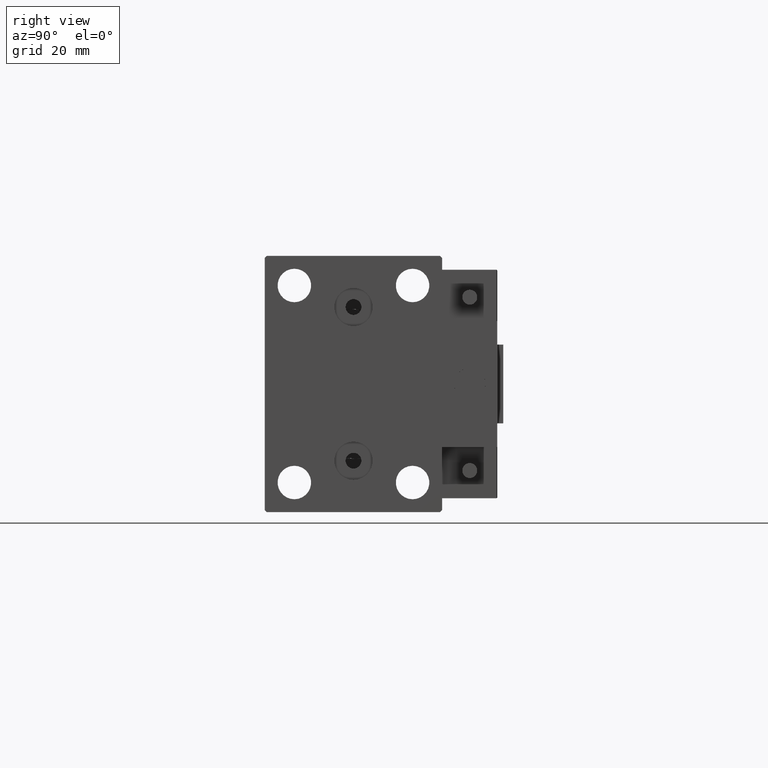
[diagram: clean part render]
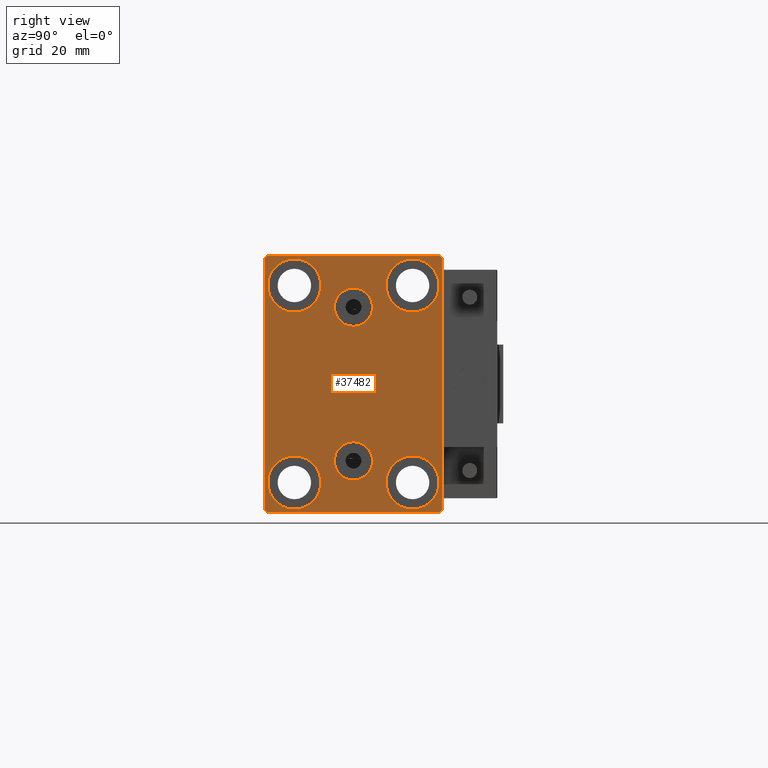
[diagram: same view with one face highlighted and labeled with its STEP entity id]
A machine part, right view. The second image highlights one B-rep face of the part: STEP entity #37482.
In plain terms, the highlighted planar face has unit normal (1, 0, 0).
Its self-contained STEP definition (entity closure, byte-faithful):
#85 = DIRECTION ( 'NONE',  ( -1.000000000000000000, -0.000000000000000000, -0.000000000000000000 ) ) ;
#421 = FACE_BOUND ( 'NONE', #34217, .T. ) ;
#723 = EDGE_CURVE ( 'NONE', #37584, #48926, #15099, .T. ) ;
#1531 = CARTESIAN_POINT ( 'NONE',  ( 70.00000000000000000, -3.571693674697836683E-15, 19.50000000000000355 ) ) ;
#2071 = VERTEX_POINT ( 'NONE', #15064 ) ;
#2074 = VERTEX_POINT ( 'NONE', #22427 ) ;
#2349 = ORIENTED_EDGE ( 'NONE', *, *, #18593, .T. ) ;
#2729 = LINE ( 'NONE', #47507, #14091 ) ;
#2769 = LINE ( 'NONE', #43117, #6940 ) ;
#3944 = AXIS2_PLACEMENT_3D ( 'NONE', #17179, #25037, #32399 ) ;
#4075 = CARTESIAN_POINT ( 'NONE',  ( 70.00000000000000000, 22.49999999999999289, 32.50000000000000000 ) ) ;
#4700 = EDGE_LOOP ( 'NONE', ( #47580, #24415, #48046, #43548, #11087, #23795, #24167, #33088 ) ) ;
#5157 = CARTESIAN_POINT ( 'NONE',  ( 70.00000000000000000, 15.00000000000000355, 31.75000000000000000 ) ) ;
#5225 = EDGE_LOOP ( 'NONE', ( #2349, #20823 ) ) ;
#5406 = CARTESIAN_POINT ( 'NONE',  ( 70.00000000000000000, 14.99999999999999645, -31.75000000000000000 ) ) ;
#5986 = DIRECTION ( 'NONE',  ( 0.000000000000000000, 1.000000000000000000, 0.000000000000000000 ) ) ;
#6089 = DIRECTION ( 'NONE',  ( 1.000000000000000000, 0.000000000000000000, -0.000000000000000000 ) ) ;
#6122 = ORIENTED_EDGE ( 'NONE', *, *, #723, .F. ) ;
#6157 = CARTESIAN_POINT ( 'NONE',  ( 70.00000000000000000, -2.976515330312223406E-15, 24.36000000000000298 ) ) ;
#6421 = EDGE_LOOP ( 'NONE', ( #30762, #47994 ) ) ;
#6527 = CIRCLE ( 'NONE', #7367, 6.749999999999999112 ) ;
#6940 = VECTOR ( 'NONE', #15073, 1000.000000000000114 ) ;
#7017 = DIRECTION ( 'NONE',  ( 0.000000000000000000, 0.000000000000000000, -1.000000000000000000 ) ) ;
#7288 = VERTEX_POINT ( 'NONE', #48663 ) ;
#7335 = VECTOR ( 'NONE', #12444, 1000.000000000000000 ) ;
#7367 = AXIS2_PLACEMENT_3D ( 'NONE', #43550, #38862, #44068 ) ;
#7636 = ORIENTED_EDGE ( 'NONE', *, *, #30665, .F. ) ;
#7929 = EDGE_CURVE ( 'NONE', #40710, #38103, #39519, .T. ) ;
#7941 = AXIS2_PLACEMENT_3D ( 'NONE', #24775, #15609, #28206 ) ;
#8047 = DIRECTION ( 'NONE',  ( -1.000000000000000000, -0.000000000000000000, -0.000000000000000000 ) ) ;
#8356 = VERTEX_POINT ( 'NONE', #24929 ) ;
#8604 = EDGE_LOOP ( 'NONE', ( #23340, #36219 ) ) ;
#8835 = AXIS2_PLACEMENT_3D ( 'NONE', #46672, #50080, #39067 ) ;
#9381 = DIRECTION ( 'NONE',  ( 1.000000000000000000, 0.000000000000000000, 0.000000000000000000 ) ) ;
#9646 = EDGE_CURVE ( 'NONE', #42174, #2071, #50000, .T. ) ;
#9958 = CARTESIAN_POINT ( 'NONE',  ( 70.00000000000000000, 27.25000000000014921, 27.24999999999976907 ) ) ;
#9973 = EDGE_CURVE ( 'NONE', #50087, #42174, #2769, .T. ) ;
#10275 = DIRECTION ( 'NONE',  ( 0.000000000000000000, 0.000000000000000000, 1.000000000000000000 ) ) ;
#10461 = CIRCLE ( 'NONE', #47259, 6.749999999999999112 ) ;
#10491 = CARTESIAN_POINT ( 'NONE',  ( 70.00000000000000000, 2.983239602722951428E-15, -14.63999999999999702 ) ) ;
#10705 = EDGE_LOOP ( 'NONE', ( #17413, #45695 ) ) ;
#10790 = VECTOR ( 'NONE', #5986, 1000.000000000000000 ) ;
#11013 = VERTEX_POINT ( 'NONE', #27922 ) ;
#11087 = ORIENTED_EDGE ( 'NONE', *, *, #45518, .T. ) ;
#12143 = DIRECTION ( 'NONE',  ( -1.000000000000000000, -0.000000000000000000, -0.000000000000000000 ) ) ;
#12444 = DIRECTION ( 'NONE',  ( 0.000000000000000000, -1.000000000000000000, -1.541976423090495387E-16 ) ) ;
#12460 = FACE_BOUND ( 'NONE', #5225, .T. ) ;
#13035 = CARTESIAN_POINT ( 'NONE',  ( 70.00000000000000000, 15.00000000000000355, 25.00000000000000000 ) ) ;
#13398 = EDGE_CURVE ( 'NONE', #35146, #8356, #33909, .T. ) ;
#13841 = DIRECTION ( 'NONE',  ( 0.000000000000000000, 0.000000000000000000, -1.000000000000000000 ) ) ;
#13885 = DIRECTION ( 'NONE',  ( -0.000000000000000000, 0.7071067811865378028, -0.7071067811865573427 ) ) ;
#14091 = VECTOR ( 'NONE', #15285, 1000.000000000000000 ) ;
#14117 = CARTESIAN_POINT ( 'NONE',  ( 70.00000000000000000, -22.50000000000000711, 32.49999999999999289 ) ) ;
#14377 = DIRECTION ( 'NONE',  ( 0.000000000000000000, 0.000000000000000000, -1.000000000000000000 ) ) ;
#14709 = CARTESIAN_POINT ( 'NONE',  ( 70.00000000000000000, -15.00000000000000355, -18.25000000000000355 ) ) ;
#15064 = CARTESIAN_POINT ( 'NONE',  ( 70.00000000000000000, -22.50000000000000711, -32.00000000000000711 ) ) ;
#15073 = DIRECTION ( 'NONE',  ( 0.000000000000000000, -0.7071067811865474617, -0.7071067811865474617 ) ) ;
#15099 = CIRCLE ( 'NONE', #44391, 4.859999999999999432 ) ;
#15285 = DIRECTION ( 'NONE',  ( 0.000000000000000000, -1.067522139062650425E-16, 1.000000000000000000 ) ) ;
#15603 = VECTOR ( 'NONE', #33048, 999.9999999999998863 ) ;
#15609 = DIRECTION ( 'NONE',  ( -1.000000000000000000, -0.000000000000000000, -0.000000000000000000 ) ) ;
#15704 = DIRECTION ( 'NONE',  ( 1.000000000000000000, 0.000000000000000000, -0.000000000000000000 ) ) ;
#15872 = VERTEX_POINT ( 'NONE', #45535 ) ;
#16133 = PLANE ( 'NONE',  #3944 ) ;
#17064 = CARTESIAN_POINT ( 'NONE',  ( 70.00000000000000000, -22.50000000000000711, -32.50000000000000711 ) ) ;
#17110 = EDGE_CURVE ( 'NONE', #43735, #27978, #10461, .T. ) ;
#17179 = CARTESIAN_POINT ( 'NONE',  ( 70.00000000000000000, 0.000000000000000000, 0.000000000000000000 ) ) ;
#17300 = LINE ( 'NONE', #9958, #15603 ) ;
#17413 = ORIENTED_EDGE ( 'NONE', *, *, #33986, .T. ) ;
#17875 = CARTESIAN_POINT ( 'NONE',  ( 70.00000000000000000, -3.571693674697836683E-15, 14.64000000000000412 ) ) ;
#18056 = AXIS2_PLACEMENT_3D ( 'NONE', #27909, #51728, #28176 ) ;
#18593 = EDGE_CURVE ( 'NONE', #8356, #35146, #21411, .T. ) ;
#19866 = EDGE_CURVE ( 'NONE', #2071, #7288, #39021, .T. ) ;
#20327 = FACE_BOUND ( 'NONE', #10705, .T. ) ;
#20371 = DIRECTION ( 'NONE',  ( 0.000000000000000000, 0.000000000000000000, 1.000000000000000000 ) ) ;
#20432 = EDGE_CURVE ( 'NONE', #25034, #22188, #17300, .T. ) ;
#20823 = ORIENTED_EDGE ( 'NONE', *, *, #13398, .T. ) ;
#20986 = LINE ( 'NONE', #17064, #10790 ) ;
#21263 = CIRCLE ( 'NONE', #47222, 4.859999999999999432 ) ;
#21411 = CIRCLE ( 'NONE', #8835, 6.749999999999999112 ) ;
#21545 = CARTESIAN_POINT ( 'NONE',  ( 70.00000000000000000, 2.388061258337338150E-15, -19.49999999999999645 ) ) ;
#22157 = CARTESIAN_POINT ( 'NONE',  ( 70.00000000000000000, 27.25000000000032685, -27.24999999999957012 ) ) ;
#22188 = VERTEX_POINT ( 'NONE', #24666 ) ;
#22427 = CARTESIAN_POINT ( 'NONE',  ( 70.00000000000000000, 2.388061258337338150E-15, -24.35999999999999588 ) ) ;
#22911 = CARTESIAN_POINT ( 'NONE',  ( 70.00000000000000000, -21.99999999999999289, 32.49999999999999289 ) ) ;
#23340 = ORIENTED_EDGE ( 'NONE', *, *, #43325, .T. ) ;
#23795 = ORIENTED_EDGE ( 'NONE', *, *, #28895, .T. ) ;
#24167 = ORIENTED_EDGE ( 'NONE', *, *, #40729, .T. ) ;
#24415 = ORIENTED_EDGE ( 'NONE', *, *, #9973, .T. ) ;
#24666 = CARTESIAN_POINT ( 'NONE',  ( 70.00000000000000000, 21.99999999999999289, 32.50000000000000000 ) ) ;
#24775 = CARTESIAN_POINT ( 'NONE',  ( 70.00000000000000000, -15.00000000000000355, -25.00000000000000000 ) ) ;
#24929 = CARTESIAN_POINT ( 'NONE',  ( 70.00000000000000000, -15.00000000000000355, -31.75000000000000000 ) ) ;
#25034 = VERTEX_POINT ( 'NONE', #44793 ) ;
#25037 = DIRECTION ( 'NONE',  ( 1.000000000000000000, 0.000000000000000000, 0.000000000000000000 ) ) ;
#25645 = VECTOR ( 'NONE', #13885, 1000.000000000000000 ) ;
#26104 = LINE ( 'NONE', #22157, #41286 ) ;
#26299 = AXIS2_PLACEMENT_3D ( 'NONE', #21545, #6089, #10275 ) ;
#26622 = AXIS2_PLACEMENT_3D ( 'NONE', #43484, #15704, #35133 ) ;
#27882 = DIRECTION ( 'NONE',  ( 0.000000000000000000, 0.000000000000000000, 1.000000000000000000 ) ) ;
#27909 = CARTESIAN_POINT ( 'NONE',  ( 70.00000000000000000, 14.99999999999999645, -25.00000000000000000 ) ) ;
#27922 = CARTESIAN_POINT ( 'NONE',  ( 70.00000000000000000, 22.00000000000001421, -32.50000000000000711 ) ) ;
#27978 = VERTEX_POINT ( 'NONE', #5406 ) ;
#28144 = EDGE_LOOP ( 'NONE', ( #7636, #6122 ) ) ;
#28176 = DIRECTION ( 'NONE',  ( 0.000000000000000000, 0.000000000000000000, 1.000000000000000000 ) ) ;
#28206 = DIRECTION ( 'NONE',  ( 0.000000000000000000, 0.000000000000000000, 1.000000000000000000 ) ) ;
#28895 = EDGE_CURVE ( 'NONE', #11013, #48466, #26104, .T. ) ;
#29251 = FACE_BOUND ( 'NONE', #6421, .T. ) ;
#30050 = CIRCLE ( 'NONE', #36720, 6.749999999999999112 ) ;
#30107 = DIRECTION ( 'NONE',  ( 0.000000000000000000, 0.000000000000000000, 1.000000000000000000 ) ) ;
#30665 = EDGE_CURVE ( 'NONE', #48926, #37584, #21263, .T. ) ;
#30762 = ORIENTED_EDGE ( 'NONE', *, *, #31297, .F. ) ;
#30894 = VERTEX_POINT ( 'NONE', #5157 ) ;
#31297 = EDGE_CURVE ( 'NONE', #2074, #39262, #43853, .T. ) ;
#31985 = AXIS2_PLACEMENT_3D ( 'NONE', #33104, #85, #36246 ) ;
#32382 = LINE ( 'NONE', #4075, #7335 ) ;
#32399 = DIRECTION ( 'NONE',  ( 0.000000000000000000, 0.000000000000000000, -1.000000000000000000 ) ) ;
#33048 = DIRECTION ( 'NONE',  ( -0.000000000000000000, -0.7071067811865425767, 0.7071067811865525687 ) ) ;
#33088 = ORIENTED_EDGE ( 'NONE', *, *, #20432, .T. ) ;
#33104 = CARTESIAN_POINT ( 'NONE',  ( 70.00000000000000000, -14.99999999999999645, 25.00000000000000000 ) ) ;
#33532 = DIRECTION ( 'NONE',  ( 1.000000000000000000, 0.000000000000000000, 0.000000000000000000 ) ) ;
#33909 = CIRCLE ( 'NONE', #7941, 6.749999999999999112 ) ;
#33979 = CIRCLE ( 'NONE', #18056, 6.749999999999999112 ) ;
#33986 = EDGE_CURVE ( 'NONE', #27978, #43735, #33979, .T. ) ;
#34217 = EDGE_LOOP ( 'NONE', ( #50894, #43789 ) ) ;
#35133 = DIRECTION ( 'NONE',  ( 0.000000000000000000, 0.000000000000000000, 1.000000000000000000 ) ) ;
#35146 = VERTEX_POINT ( 'NONE', #14709 ) ;
#35674 = CARTESIAN_POINT ( 'NONE',  ( 70.00000000000000000, -22.50000000000000711, 31.99999999999999289 ) ) ;
#36219 = ORIENTED_EDGE ( 'NONE', *, *, #45034, .T. ) ;
#36246 = DIRECTION ( 'NONE',  ( 0.000000000000000000, 0.000000000000000000, 1.000000000000000000 ) ) ;
#36322 = FACE_BOUND ( 'NONE', #28144, .T. ) ;
#36720 = AXIS2_PLACEMENT_3D ( 'NONE', #13035, #8047, #20371 ) ;
#37402 = CIRCLE ( 'NONE', #40750, 6.749999999999999112 ) ;
#37482 = ADVANCED_FACE ( 'NONE', ( #36322, #29251, #20327, #421, #41012, #12460, #49133 ), #16133, .T. ) ;
#37584 = VERTEX_POINT ( 'NONE', #6157 ) ;
#37851 = EDGE_CURVE ( 'NONE', #38103, #40710, #37402, .T. ) ;
#38103 = VERTEX_POINT ( 'NONE', #45023 ) ;
#38762 = CARTESIAN_POINT ( 'NONE',  ( 70.00000000000000000, -27.25000000000032330, -27.24999999999957012 ) ) ;
#38862 = DIRECTION ( 'NONE',  ( -1.000000000000000000, -0.000000000000000000, -0.000000000000000000 ) ) ;
#38977 = DIRECTION ( 'NONE',  ( -1.000000000000000000, -0.000000000000000000, -0.000000000000000000 ) ) ;
#39021 = LINE ( 'NONE', #38762, #25645 ) ;
#39067 = DIRECTION ( 'NONE',  ( 0.000000000000000000, 0.000000000000000000, 1.000000000000000000 ) ) ;
#39258 = CARTESIAN_POINT ( 'NONE',  ( 70.00000000000000000, 22.50000000000000000, -32.00000000000002132 ) ) ;
#39262 = VERTEX_POINT ( 'NONE', #10491 ) ;
#39519 = CIRCLE ( 'NONE', #31985, 6.749999999999999112 ) ;
#39750 = EDGE_CURVE ( 'NONE', #22188, #50087, #32382, .T. ) ;
#40710 = VERTEX_POINT ( 'NONE', #51177 ) ;
#40729 = EDGE_CURVE ( 'NONE', #48466, #25034, #2729, .T. ) ;
#40750 = AXIS2_PLACEMENT_3D ( 'NONE', #44888, #12143, #27882 ) ;
#41012 = FACE_BOUND ( 'NONE', #8604, .T. ) ;
#41286 = VECTOR ( 'NONE', #50440, 1000.000000000000114 ) ;
#41895 = CARTESIAN_POINT ( 'NONE',  ( 70.00000000000000000, -3.571693674697836683E-15, 19.50000000000000355 ) ) ;
#42174 = VERTEX_POINT ( 'NONE', #35674 ) ;
#43117 = CARTESIAN_POINT ( 'NONE',  ( 70.00000000000000000, -27.25000000000000000, 27.25000000000000000 ) ) ;
#43325 = EDGE_CURVE ( 'NONE', #15872, #30894, #6527, .T. ) ;
#43484 = CARTESIAN_POINT ( 'NONE',  ( 70.00000000000000000, 2.388061258337338150E-15, -19.49999999999999645 ) ) ;
#43529 = EDGE_CURVE ( 'NONE', #39262, #2074, #51723, .T. ) ;
#43548 = ORIENTED_EDGE ( 'NONE', *, *, #19866, .T. ) ;
#43550 = CARTESIAN_POINT ( 'NONE',  ( 70.00000000000000000, 15.00000000000000355, 25.00000000000000000 ) ) ;
#43735 = VERTEX_POINT ( 'NONE', #44265 ) ;
#43789 = ORIENTED_EDGE ( 'NONE', *, *, #37851, .T. ) ;
#43853 = CIRCLE ( 'NONE', #26299, 4.859999999999999432 ) ;
#44068 = DIRECTION ( 'NONE',  ( 0.000000000000000000, 0.000000000000000000, 1.000000000000000000 ) ) ;
#44265 = CARTESIAN_POINT ( 'NONE',  ( 70.00000000000000000, 14.99999999999999645, -18.25000000000000355 ) ) ;
#44391 = AXIS2_PLACEMENT_3D ( 'NONE', #1531, #9381, #13841 ) ;
#44793 = CARTESIAN_POINT ( 'NONE',  ( 70.00000000000000000, 22.49999999999999289, 31.99999999999999289 ) ) ;
#44888 = CARTESIAN_POINT ( 'NONE',  ( 70.00000000000000000, -14.99999999999999645, 25.00000000000000000 ) ) ;
#45023 = CARTESIAN_POINT ( 'NONE',  ( 70.00000000000000000, -14.99999999999999645, 31.75000000000000000 ) ) ;
#45034 = EDGE_CURVE ( 'NONE', #30894, #15872, #30050, .T. ) ;
#45446 = VECTOR ( 'NONE', #7017, 1000.000000000000000 ) ;
#45518 = EDGE_CURVE ( 'NONE', #7288, #11013, #20986, .T. ) ;
#45535 = CARTESIAN_POINT ( 'NONE',  ( 70.00000000000000000, 15.00000000000000355, 18.25000000000000355 ) ) ;
#45695 = ORIENTED_EDGE ( 'NONE', *, *, #17110, .T. ) ;
#46672 = CARTESIAN_POINT ( 'NONE',  ( 70.00000000000000000, -15.00000000000000355, -25.00000000000000000 ) ) ;
#47222 = AXIS2_PLACEMENT_3D ( 'NONE', #41895, #33532, #14377 ) ;
#47259 = AXIS2_PLACEMENT_3D ( 'NONE', #50495, #38977, #30107 ) ;
#47507 = CARTESIAN_POINT ( 'NONE',  ( 70.00000000000000000, 22.50000000000000000, -32.50000000000000711 ) ) ;
#47580 = ORIENTED_EDGE ( 'NONE', *, *, #39750, .T. ) ;
#47994 = ORIENTED_EDGE ( 'NONE', *, *, #43529, .F. ) ;
#48046 = ORIENTED_EDGE ( 'NONE', *, *, #9646, .T. ) ;
#48466 = VERTEX_POINT ( 'NONE', #39258 ) ;
#48663 = CARTESIAN_POINT ( 'NONE',  ( 70.00000000000000000, -22.00000000000002132, -32.50000000000000711 ) ) ;
#48926 = VERTEX_POINT ( 'NONE', #17875 ) ;
#49133 = FACE_OUTER_BOUND ( 'NONE', #4700, .T. ) ;
#50000 = LINE ( 'NONE', #14117, #45446 ) ;
#50080 = DIRECTION ( 'NONE',  ( -1.000000000000000000, -0.000000000000000000, -0.000000000000000000 ) ) ;
#50087 = VERTEX_POINT ( 'NONE', #22911 ) ;
#50440 = DIRECTION ( 'NONE',  ( -0.000000000000000000, 0.7071067811865376918, 0.7071067811865573427 ) ) ;
#50495 = CARTESIAN_POINT ( 'NONE',  ( 70.00000000000000000, 14.99999999999999645, -25.00000000000000000 ) ) ;
#50894 = ORIENTED_EDGE ( 'NONE', *, *, #7929, .T. ) ;
#51177 = CARTESIAN_POINT ( 'NONE',  ( 70.00000000000000000, -14.99999999999999645, 18.25000000000000355 ) ) ;
#51723 = CIRCLE ( 'NONE', #26622, 4.859999999999999432 ) ;
#51728 = DIRECTION ( 'NONE',  ( -1.000000000000000000, -0.000000000000000000, -0.000000000000000000 ) ) ;